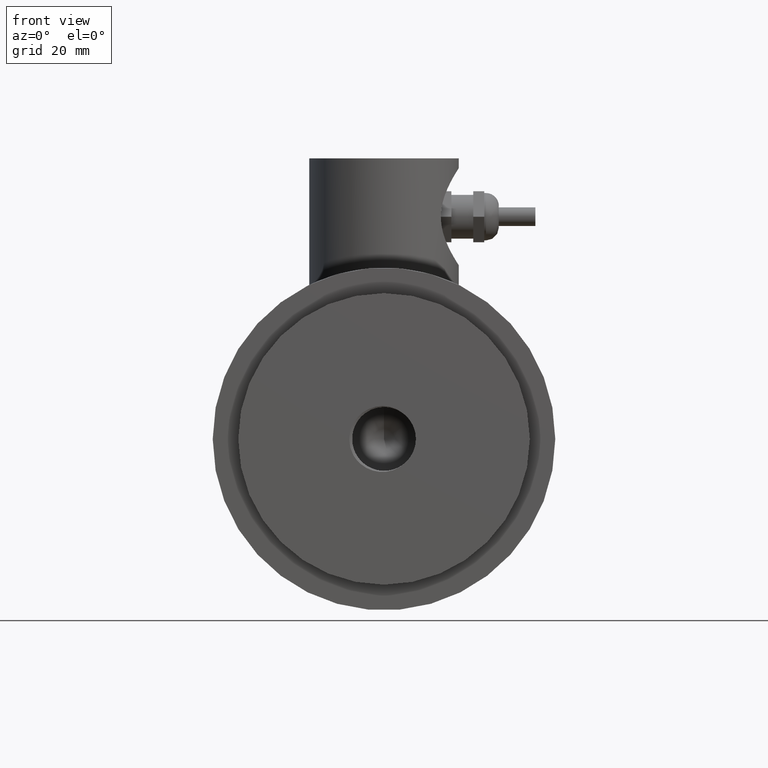
[diagram: clean part render]
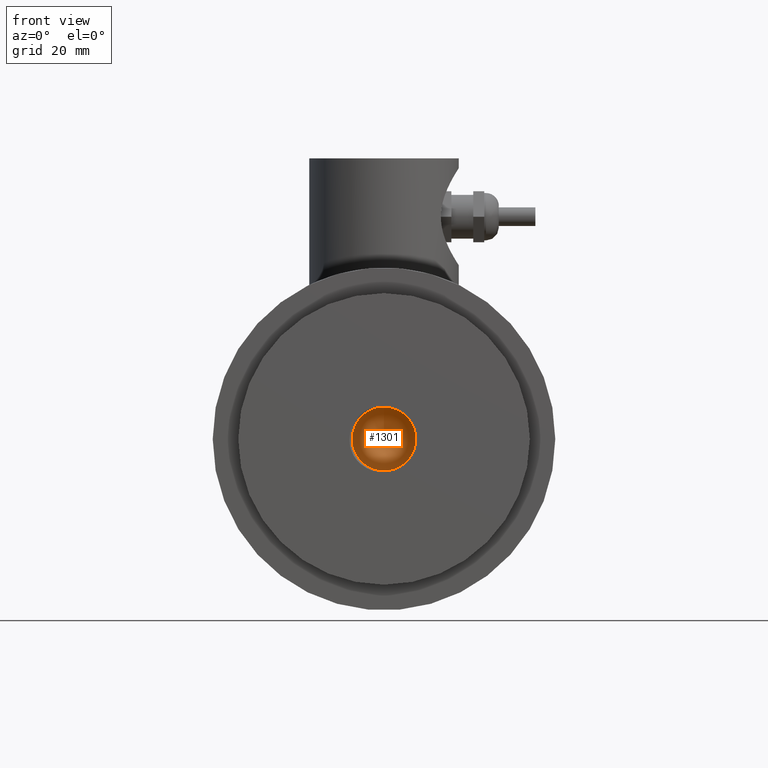
[diagram: same view with one face highlighted and labeled with its STEP entity id]
A machine part, front view. The second image highlights one B-rep face of the part: STEP entity #1301.
In plain terms, the highlighted conical surface has half-angle 59 deg.
Its self-contained STEP definition (entity closure, byte-faithful):
#16=CONICAL_SURFACE('',#1409,0.179409441332485,1.02974425867665);
#204=FACE_OUTER_BOUND('',#288,.T.);
#288=EDGE_LOOP('',(#1130,#1131,#1132,#1133,#1134));
#385=LINE('',#5715,#469);
#469=VECTOR('',#1673,0.1875);
#487=CIRCLE('',#1370,0.3445);
#488=CIRCLE('',#1372,0.3445);
#492=CIRCLE('',#1407,0.3445);
#551=VERTEX_POINT('',#1964);
#552=VERTEX_POINT('',#1966);
#555=VERTEX_POINT('',#1979);
#610=VERTEX_POINT('',#5714);
#691=EDGE_CURVE('',#551,#552,#487,.T.);
#695=EDGE_CURVE('',#555,#551,#488,.T.);
#782=EDGE_CURVE('',#552,#555,#492,.T.);
#791=EDGE_CURVE('',#551,#610,#385,.T.);
#1130=ORIENTED_EDGE('',*,*,#695,.F.);
#1131=ORIENTED_EDGE('',*,*,#782,.F.);
#1132=ORIENTED_EDGE('',*,*,#691,.F.);
#1133=ORIENTED_EDGE('',*,*,#791,.T.);
#1134=ORIENTED_EDGE('',*,*,#791,.F.);
#1301=ADVANCED_FACE('',(#204),#16,.F.);
#1370=AXIS2_PLACEMENT_3D('',#1967,#1566,#1567);
#1372=AXIS2_PLACEMENT_3D('',#2011,#1571,#1572);
#1407=AXIS2_PLACEMENT_3D('',#3753,#1667,#1668);
#1409=AXIS2_PLACEMENT_3D('',#5713,#1671,#1672);
#1566=DIRECTION('center_axis',(0.,1.,0.));
#1567=DIRECTION('ref_axis',(0.,0.,-1.));
#1571=DIRECTION('center_axis',(0.,1.,0.));
#1572=DIRECTION('ref_axis',(0.,0.,-1.));
#1667=DIRECTION('center_axis',(0.,1.,0.));
#1668=DIRECTION('ref_axis',(0.,0.,-1.));
#1671=DIRECTION('center_axis',(0.,-1.,0.));
#1672=DIRECTION('ref_axis',(0.,0.,-1.));
#1673=DIRECTION('',(-1.04972719113862E-16,0.515038074910054,-0.857167300702112));
#1964=CARTESIAN_POINT('',(4.21890822306263E-17,0.98,0.3445));
#1966=CARTESIAN_POINT('',(0.147726764664339,0.98,0.311218657862614));
#1967=CARTESIAN_POINT('Origin',(0.,0.98,0.));
#1979=CARTESIAN_POINT('',(-0.333962681007063,0.98,0.0845528100927139));
#2011=CARTESIAN_POINT('Origin',(0.,0.98,0.));
#3753=CARTESIAN_POINT('Origin',(0.,0.98,0.));
#5713=CARTESIAN_POINT('Origin',(0.,1.07919641527657,0.));
#5714=CARTESIAN_POINT('',(0.,1.18699648325499,-1.99184492602461E-17));
#5715=CARTESIAN_POINT('',(2.19713198064642E-17,1.07919641527657,0.179409441332485));